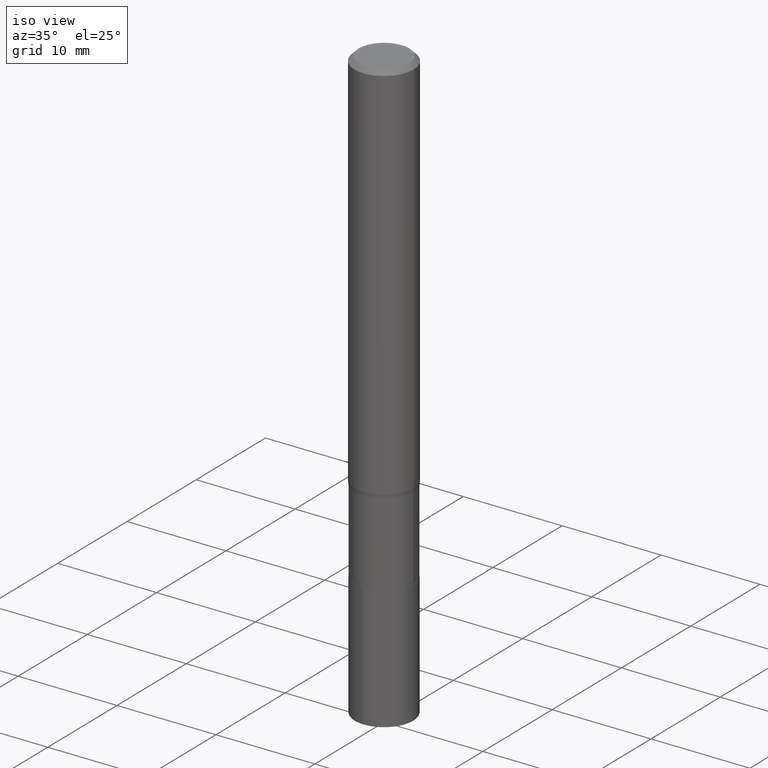
[diagram: clean part render]
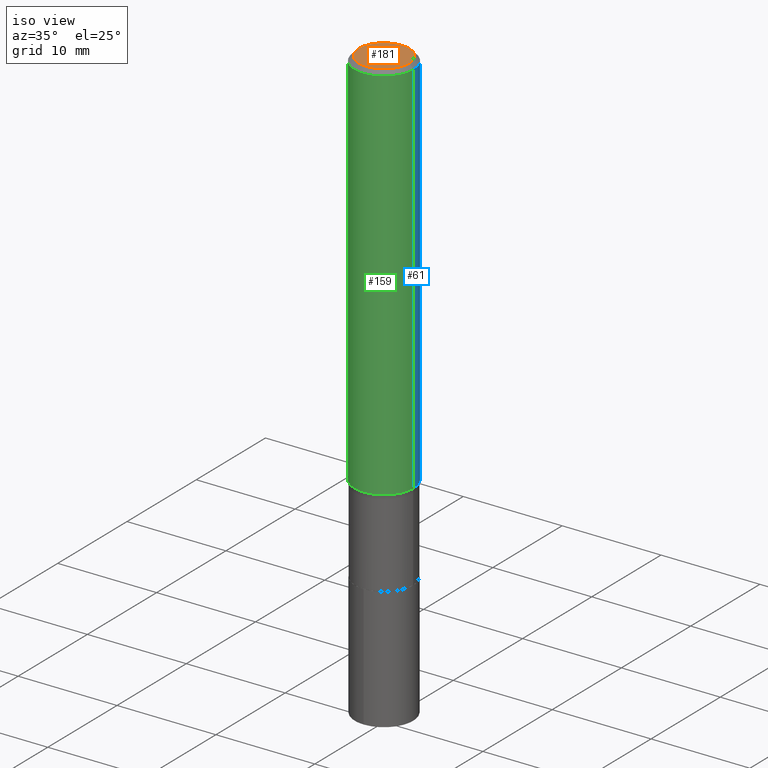
[diagram: same view with three faces highlighted in distinct colors, each labeled with its STEP entity id]
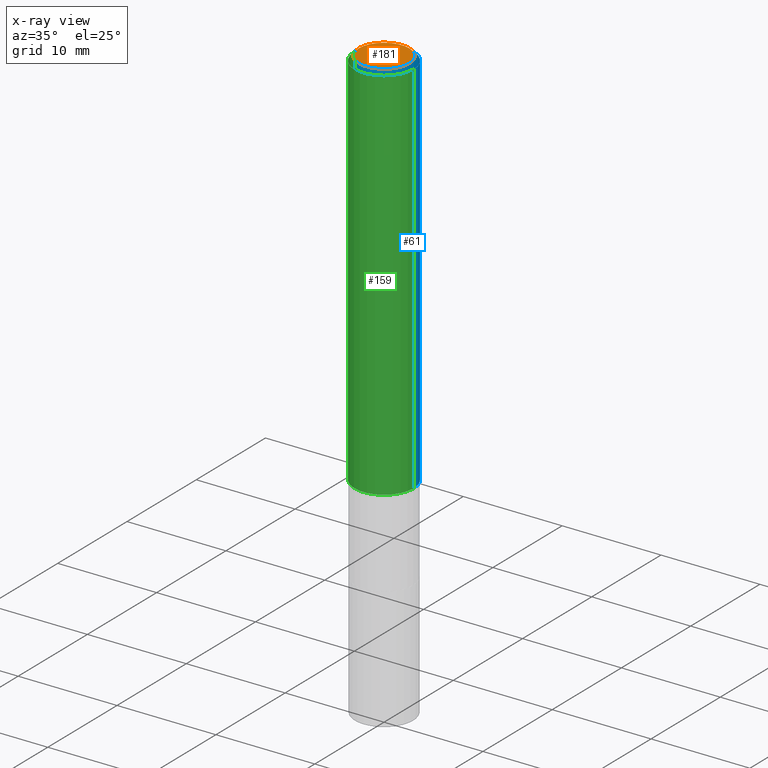
[diagram: x-ray of the same camera — body ghosted, the three highlighted faces saturated]
A machine part, iso view with three faces highlighted in distinct colors.
The next image is the same camera in x-ray (body ghosted, the three faces saturated) — at least one of them is partly hidden behind the body in this view.
Their STEP definitions:

[orange] entity #181 — the highlighted planar face has unit normal (0, -0, -1).
#35 = DIRECTION ( 'NONE',  ( -2.445468806185136597E-29, 3.491481338843145583E-15, 1.000000000000000000 ) ) ;
#39 = DIRECTION ( 'NONE',  ( 1.000000000000000000, -6.982962677686266711E-15, 4.875668750515089058E-29 ) ) ;
#40 = CARTESIAN_POINT ( 'NONE',  ( -0.1003849999999999465, 7.319105043583382745E-16, -3.278471329827902485E-17 ) ) ;
#67 = DIRECTION ( 'NONE',  ( 1.000000000000000000, -6.982962677686266711E-15, 4.875668750515089058E-29 ) ) ;
#104 = DIRECTION ( 'NONE',  ( -2.445468806185136597E-29, 3.491481338843145583E-15, 1.000000000000000000 ) ) ;
#119 = CIRCLE ( 'NONE', #157, 0.1003849999999999465 ) ;
#139 = VERTEX_POINT ( 'NONE', #449 ) ;
#157 = AXIS2_PLACEMENT_3D ( 'NONE', #253, #104, #67 ) ;
#181 = ADVANCED_FACE ( 'NONE', ( #315 ), #436, .F. ) ;
#185 = CARTESIAN_POINT ( 'NONE',  ( 8.017399369065212404E-46, -1.144672146802464325E-31, -3.278471329827401435E-17 ) ) ;
#204 = ORIENTED_EDGE ( 'NONE', *, *, #368, .T. ) ;
#250 = CARTESIAN_POINT ( 'NONE',  ( 4.008699684532606202E-46, -5.723360734012321624E-32, -1.639235664913700718E-17 ) ) ;
#253 = CARTESIAN_POINT ( 'NONE',  ( 8.017399369065212404E-46, -1.144672146802464325E-31, -3.278471329827401435E-17 ) ) ;
#261 = AXIS2_PLACEMENT_3D ( 'NONE', #185, #35, #39 ) ;
#282 = DIRECTION ( 'NONE',  ( -1.000000000000000000, 6.982962677686265922E-15, -4.876176775795935793E-29 ) ) ;
#315 = FACE_OUTER_BOUND ( 'NONE', #397, .T. ) ;
#316 = EDGE_CURVE ( 'NONE', #377, #139, #119, .T. ) ;
#335 = AXIS2_PLACEMENT_3D ( 'NONE', #250, #454, #282 ) ;
#343 = ORIENTED_EDGE ( 'NONE', *, *, #316, .T. ) ;
#368 = EDGE_CURVE ( 'NONE', #139, #377, #380, .T. ) ;
#377 = VERTEX_POINT ( 'NONE', #40 ) ;
#380 = CIRCLE ( 'NONE', #261, 0.1003849999999999465 ) ;
#397 = EDGE_LOOP ( 'NONE', ( #343, #204 ) ) ;
#436 = PLANE ( 'NONE',  #335 ) ;
#449 = CARTESIAN_POINT ( 'NONE',  ( 0.1003849999999999465, -7.803837484803597373E-16, -3.278471329826883745E-17 ) ) ;
#454 = DIRECTION ( 'NONE',  ( 2.438088387897960049E-29, -3.491481338843145188E-15, -1.000000000000000000 ) ) ;

[blue] entity #61 — the highlighted cylindrical surface (edge-blend (fillet) strip) has radius 2.9997 mm, axis along (-0, 0, 1).
#1 = DIRECTION ( 'NONE',  ( -2.445468806185136877E-29, 3.491481338843145188E-15, 1.000000000000000000 ) ) ;
#15 = ORIENTED_EDGE ( 'NONE', *, *, #375, .F. ) ;
#19 = AXIS2_PLACEMENT_3D ( 'NONE', #405, #118, #363 ) ;
#41 = CARTESIAN_POINT ( 'NONE',  ( 0.1180999999999999966, -8.865394841523548556E-16, -0.01771500000000011954 ) ) ;
#46 = VECTOR ( 'NONE', #1, 39.37007874015748143 ) ;
#49 = DIRECTION ( 'NONE',  ( -2.445468806185136877E-29, 3.491481338843145188E-15, 1.000000000000000000 ) ) ;
#59 = VERTEX_POINT ( 'NONE', #177 ) ;
#61 = ADVANCED_FACE ( 'NONE', ( #293 ), #437, .T. ) ;
#72 = DIRECTION ( 'NONE',  ( -2.445468806185136597E-29, 3.491481338843145583E-15, 1.000000000000000000 ) ) ;
#113 = CARTESIAN_POINT ( 'NONE',  ( 0.000000000000000000, 0.000000000000000000, 0.000000000000000000 ) ) ;
#118 = DIRECTION ( 'NONE',  ( -2.445468806185136597E-29, 3.491481338843145583E-15, 1.000000000000000000 ) ) ;
#136 = CIRCLE ( 'NONE', #273, 0.1181000000000001909 ) ;
#143 = EDGE_CURVE ( 'NONE', #59, #422, #310, .T. ) ;
#160 = DIRECTION ( 'NONE',  ( -2.445468806185136597E-29, 3.491481338843145583E-15, 1.000000000000000000 ) ) ;
#177 = CARTESIAN_POINT ( 'NONE',  ( -0.1181000000000001632, -4.484814954552903905E-15, -1.524844445323487729 ) ) ;
#186 = VERTEX_POINT ( 'NONE', #359 ) ;
#208 = CIRCLE ( 'NONE', #19, 0.1180999999999999966 ) ;
#223 = CARTESIAN_POINT ( 'NONE',  ( 0.1181000000000001077, -8.246878922347488542E-16, 5.758764772215005345E-30 ) ) ;
#224 = DIRECTION ( 'NONE',  ( 1.000000000000000000, -6.982962677686266711E-15, 4.876176775795935793E-29 ) ) ;
#240 = EDGE_LOOP ( 'NONE', ( #303, #461, #247, #15 ) ) ;
#247 = ORIENTED_EDGE ( 'NONE', *, *, #396, .F. ) ;
#273 = AXIS2_PLACEMENT_3D ( 'NONE', #438, #160, #410 ) ;
#274 = CARTESIAN_POINT ( 'NONE',  ( -0.1181000000000001077, 8.391509709326790846E-16, -5.809262341591049389E-30 ) ) ;
#293 = FACE_OUTER_BOUND ( 'NONE', #240, .T. ) ;
#299 = CARTESIAN_POINT ( 'NONE',  ( -0.1180999999999999966, -1.853757787768916348E-15, -0.01771500000000011954 ) ) ;
#303 = ORIENTED_EDGE ( 'NONE', *, *, #423, .T. ) ;
#310 = LINE ( 'NONE', #274, #467 ) ;
#336 = LINE ( 'NONE', #223, #46 ) ;
#359 = CARTESIAN_POINT ( 'NONE',  ( 0.1181000000000001632, -6.148653817720333520E-15, -1.524844445323487729 ) ) ;
#360 = VERTEX_POINT ( 'NONE', #41 ) ;
#363 = DIRECTION ( 'NONE',  ( 1.000000000000000000, -6.982962677686266711E-15, 0.000000000000000000 ) ) ;
#375 = EDGE_CURVE ( 'NONE', #186, #360, #336, .T. ) ;
#396 = EDGE_CURVE ( 'NONE', #360, #422, #208, .T. ) ;
#405 = CARTESIAN_POINT ( 'NONE',  ( 4.332147990156999371E-31, -6.185159191760674092E-17, -0.01771500000000011954 ) ) ;
#410 = DIRECTION ( 'NONE',  ( 1.000000000000000000, -6.982962677686269077E-15, 0.000000000000000000 ) ) ;
#422 = VERTEX_POINT ( 'NONE', #299 ) ;
#423 = EDGE_CURVE ( 'NONE', #186, #59, #136, .T. ) ;
#437 = CYLINDRICAL_SURFACE ( 'NONE', #448, 0.1181000000000001077 ) ;
#438 = CARTESIAN_POINT ( 'NONE',  ( 3.728959525323266298E-29, -5.323965925485584469E-15, -1.524844445323487729 ) ) ;
#448 = AXIS2_PLACEMENT_3D ( 'NONE', #113, #72, #224 ) ;
#461 = ORIENTED_EDGE ( 'NONE', *, *, #143, .T. ) ;
#467 = VECTOR ( 'NONE', #49, 39.37007874015748143 ) ;

[green] entity #159 — the highlighted cylindrical surface (edge-blend (fillet) strip) has radius 2.9997 mm, axis along (-0, 0, 1).
#1 = DIRECTION ( 'NONE',  ( -2.445468806185136877E-29, 3.491481338843145188E-15, 1.000000000000000000 ) ) ;
#41 = CARTESIAN_POINT ( 'NONE',  ( 0.1180999999999999966, -8.865394841523548556E-16, -0.01771500000000011954 ) ) ;
#46 = VECTOR ( 'NONE', #1, 39.37007874015748143 ) ;
#49 = DIRECTION ( 'NONE',  ( -2.445468806185136877E-29, 3.491481338843145188E-15, 1.000000000000000000 ) ) ;
#58 = FACE_OUTER_BOUND ( 'NONE', #385, .T. ) ;
#59 = VERTEX_POINT ( 'NONE', #177 ) ;
#92 = EDGE_CURVE ( 'NONE', #59, #186, #433, .T. ) ;
#95 = CYLINDRICAL_SURFACE ( 'NONE', #107, 0.1181000000000001077 ) ;
#107 = AXIS2_PLACEMENT_3D ( 'NONE', #244, #443, #325 ) ;
#143 = EDGE_CURVE ( 'NONE', #59, #422, #310, .T. ) ;
#146 = AXIS2_PLACEMENT_3D ( 'NONE', #227, #329, #230 ) ;
#155 = DIRECTION ( 'NONE',  ( 1.000000000000000000, -6.982962677686269077E-15, 0.000000000000000000 ) ) ;
#159 = ADVANCED_FACE ( 'NONE', ( #58 ), #95, .T. ) ;
#167 = ORIENTED_EDGE ( 'NONE', *, *, #375, .T. ) ;
#177 = CARTESIAN_POINT ( 'NONE',  ( -0.1181000000000001632, -4.484814954552903905E-15, -1.524844445323487729 ) ) ;
#186 = VERTEX_POINT ( 'NONE', #359 ) ;
#194 = DIRECTION ( 'NONE',  ( -2.445468806185136597E-29, 3.491481338843145583E-15, 1.000000000000000000 ) ) ;
#223 = CARTESIAN_POINT ( 'NONE',  ( 0.1181000000000001077, -8.246878922347488542E-16, 5.758764772215005345E-30 ) ) ;
#227 = CARTESIAN_POINT ( 'NONE',  ( 4.332147990156999371E-31, -6.185159191760674092E-17, -0.01771500000000011954 ) ) ;
#230 = DIRECTION ( 'NONE',  ( 1.000000000000000000, -6.982962677686266711E-15, 0.000000000000000000 ) ) ;
#236 = ORIENTED_EDGE ( 'NONE', *, *, #143, .F. ) ;
#244 = CARTESIAN_POINT ( 'NONE',  ( 0.000000000000000000, 0.000000000000000000, 0.000000000000000000 ) ) ;
#248 = AXIS2_PLACEMENT_3D ( 'NONE', #370, #194, #155 ) ;
#272 = ORIENTED_EDGE ( 'NONE', *, *, #431, .F. ) ;
#274 = CARTESIAN_POINT ( 'NONE',  ( -0.1181000000000001077, 8.391509709326790846E-16, -5.809262341591049389E-30 ) ) ;
#290 = CIRCLE ( 'NONE', #146, 0.1180999999999999966 ) ;
#299 = CARTESIAN_POINT ( 'NONE',  ( -0.1180999999999999966, -1.853757787768916348E-15, -0.01771500000000011954 ) ) ;
#310 = LINE ( 'NONE', #274, #467 ) ;
#325 = DIRECTION ( 'NONE',  ( 1.000000000000000000, -6.982962677686266711E-15, 4.876176775795935793E-29 ) ) ;
#329 = DIRECTION ( 'NONE',  ( -2.445468806185136597E-29, 3.491481338843145583E-15, 1.000000000000000000 ) ) ;
#336 = LINE ( 'NONE', #223, #46 ) ;
#359 = CARTESIAN_POINT ( 'NONE',  ( 0.1181000000000001632, -6.148653817720333520E-15, -1.524844445323487729 ) ) ;
#360 = VERTEX_POINT ( 'NONE', #41 ) ;
#370 = CARTESIAN_POINT ( 'NONE',  ( 3.728959525323266298E-29, -5.323965925485584469E-15, -1.524844445323487729 ) ) ;
#375 = EDGE_CURVE ( 'NONE', #186, #360, #336, .T. ) ;
#385 = EDGE_LOOP ( 'NONE', ( #236, #464, #167, #272 ) ) ;
#422 = VERTEX_POINT ( 'NONE', #299 ) ;
#431 = EDGE_CURVE ( 'NONE', #422, #360, #290, .T. ) ;
#433 = CIRCLE ( 'NONE', #248, 0.1181000000000001909 ) ;
#443 = DIRECTION ( 'NONE',  ( -2.445468806185136597E-29, 3.491481338843145583E-15, 1.000000000000000000 ) ) ;
#464 = ORIENTED_EDGE ( 'NONE', *, *, #92, .T. ) ;
#467 = VECTOR ( 'NONE', #49, 39.37007874015748143 ) ;